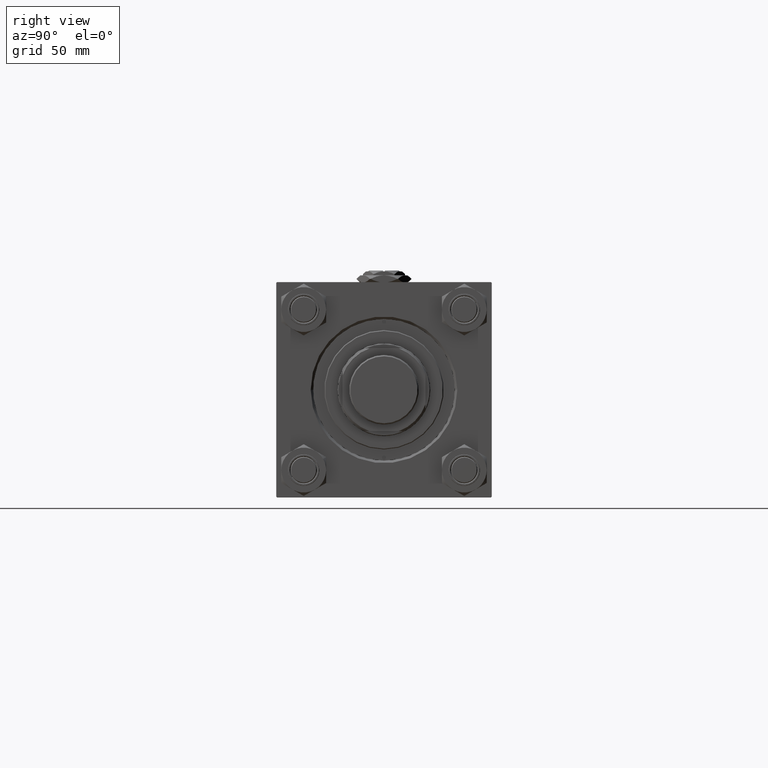
[diagram: clean part render]
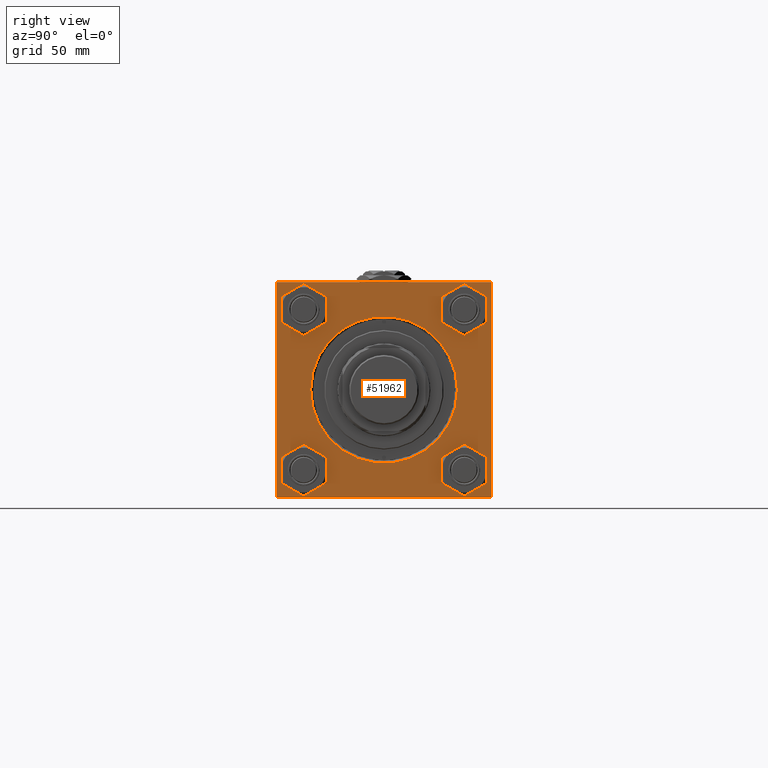
[diagram: same view with one face highlighted and labeled with its STEP entity id]
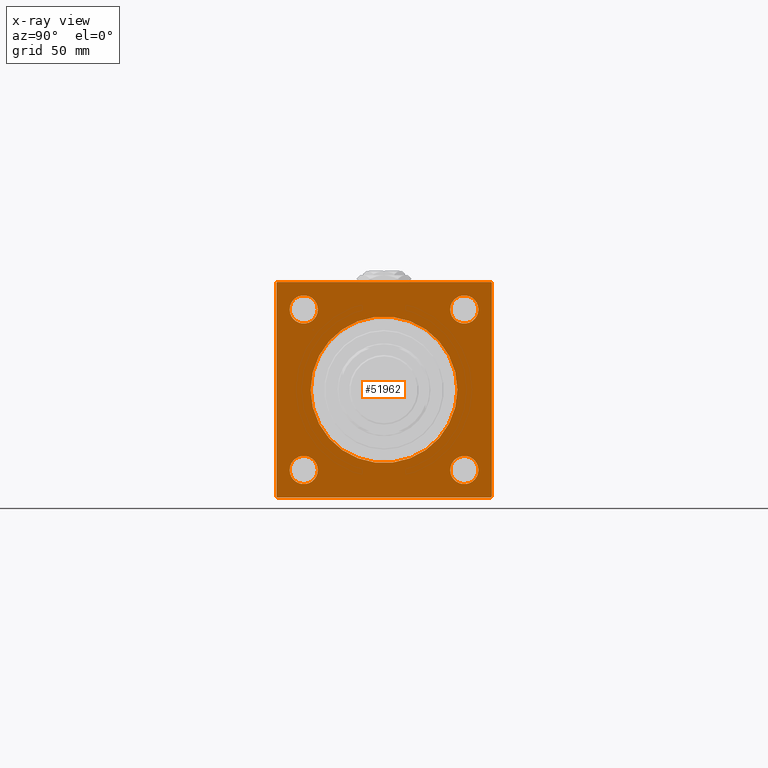
[diagram: x-ray of the same camera — body ghosted, the highlighted face saturated]
A machine part, right view. The second image highlights one B-rep face of the part: STEP entity #51962.
The next image is the same camera in x-ray: the body ghosted, the highlighted face saturated — about 0% of this face is hidden behind the body in this view.
In plain terms, the highlighted planar face has unit normal (-1, 0, 0).
Its self-contained STEP definition (entity closure, byte-faithful):
#309 = DIRECTION ( 'NONE',  ( -1.000000000000000000, 0.000000000000000000, -0.000000000000000000 ) ) ;
#379 = EDGE_CURVE ( 'NONE', #17662, #34992, #8714, .T. ) ;
#559 = EDGE_CURVE ( 'NONE', #38603, #26663, #19885, .T. ) ;
#896 = FACE_BOUND ( 'NONE', #31892, .T. ) ;
#1279 = LINE ( 'NONE', #51554, #18300 ) ;
#1307 = ORIENTED_EDGE ( 'NONE', *, *, #51897, .T. ) ;
#1412 = PLANE ( 'NONE',  #10336 ) ;
#1419 = ORIENTED_EDGE ( 'NONE', *, *, #20208, .T. ) ;
#1432 = CARTESIAN_POINT ( 'NONE',  ( 195.0000000000000000, 65.00000000000002842, -64.49999999999992895 ) ) ;
#1691 = DIRECTION ( 'NONE',  ( 0.000000000000000000, 0.000000000000000000, -1.000000000000000000 ) ) ;
#2149 = DIRECTION ( 'NONE',  ( -1.000000000000000000, 0.000000000000000000, -0.000000000000000000 ) ) ;
#3077 = AXIS2_PLACEMENT_3D ( 'NONE', #16983, #309, #17244 ) ;
#3339 = LINE ( 'NONE', #24053, #52387 ) ;
#3703 = CARTESIAN_POINT ( 'NONE',  ( 195.0000000000000000, -48.45000000000001705, -56.94999999999999574 ) ) ;
#3943 = DIRECTION ( 'NONE',  ( 0.000000000000000000, 0.000000000000000000, -1.000000000000000000 ) ) ;
#4226 = DIRECTION ( 'NONE',  ( 0.000000000000000000, 0.000000000000000000, 1.000000000000000000 ) ) ;
#4238 = CARTESIAN_POINT ( 'NONE',  ( 195.0000000000000000, 65.00000000000002842, 64.50000000000001421 ) ) ;
#4249 = DIRECTION ( 'NONE',  ( -1.000000000000000000, 0.000000000000000000, -0.000000000000000000 ) ) ;
#4678 = EDGE_CURVE ( 'NONE', #41528, #35724, #1279, .T. ) ;
#4688 = DIRECTION ( 'NONE',  ( -1.000000000000000000, 0.000000000000000000, -0.000000000000000000 ) ) ;
#5101 = EDGE_LOOP ( 'NONE', ( #32070, #22636, #49655, #14072, #5290, #1307, #49956, #1419 ) ) ;
#5128 = VECTOR ( 'NONE', #1691, 1000.000000000000000 ) ;
#5138 = VERTEX_POINT ( 'NONE', #21361 ) ;
#5290 = ORIENTED_EDGE ( 'NONE', *, *, #49861, .F. ) ;
#5997 = AXIS2_PLACEMENT_3D ( 'NONE', #8294, #4249, #20679 ) ;
#6457 = DIRECTION ( 'NONE',  ( -1.000000000000000000, 0.000000000000000000, -0.000000000000000000 ) ) ;
#6530 = VERTEX_POINT ( 'NONE', #9227 ) ;
#6898 = CARTESIAN_POINT ( 'NONE',  ( 195.0000000000000000, -64.49999999999991473, -65.00000000000001421 ) ) ;
#6950 = ORIENTED_EDGE ( 'NONE', *, *, #13087, .T. ) ;
#7025 = CARTESIAN_POINT ( 'NONE',  ( 195.0000000000000000, 48.45000000000000995, 39.95000000000003126 ) ) ;
#7468 = VERTEX_POINT ( 'NONE', #13527 ) ;
#7601 = CARTESIAN_POINT ( 'NONE',  ( 195.0000000000000000, 48.45000000000000995, -48.45000000000001705 ) ) ;
#8294 = CARTESIAN_POINT ( 'NONE',  ( 195.0000000000000000, 0.000000000000000000, 0.000000000000000000 ) ) ;
#8465 = CARTESIAN_POINT ( 'NONE',  ( 195.0000000000000000, 48.45000000000000995, -48.45000000000001705 ) ) ;
#8714 = CIRCLE ( 'NONE', #38761, 8.499999999999980460 ) ;
#8715 = CARTESIAN_POINT ( 'NONE',  ( 195.0000000000000000, 0.000000000000000000, 0.000000000000000000 ) ) ;
#8977 = FACE_BOUND ( 'NONE', #31339, .T. ) ;
#9123 = DIRECTION ( 'NONE',  ( 0.000000000000000000, 0.7071067811865672237, -0.7071067811865279218 ) ) ;
#9227 = CARTESIAN_POINT ( 'NONE',  ( 195.0000000000000000, 5.419062086227039772E-15, 44.25000000000001421 ) ) ;
#9237 = FACE_BOUND ( 'NONE', #27995, .T. ) ;
#9396 = ORIENTED_EDGE ( 'NONE', *, *, #50444, .T. ) ;
#9411 = AXIS2_PLACEMENT_3D ( 'NONE', #11056, #6457, #52440 ) ;
#9769 = VERTEX_POINT ( 'NONE', #28482 ) ;
#9774 = CARTESIAN_POINT ( 'NONE',  ( 195.0000000000000000, -64.99999999999998579, 65.00000000000000000 ) ) ;
#9831 = ORIENTED_EDGE ( 'NONE', *, *, #31762, .T. ) ;
#10323 = CIRCLE ( 'NONE', #31795, 8.499999999999980460 ) ;
#10336 = AXIS2_PLACEMENT_3D ( 'NONE', #8715, #37475, #25112 ) ;
#10500 = CARTESIAN_POINT ( 'NONE',  ( 195.0000000000000000, -48.45000000000001705, -48.45000000000001705 ) ) ;
#11015 = ORIENTED_EDGE ( 'NONE', *, *, #379, .T. ) ;
#11056 = CARTESIAN_POINT ( 'NONE',  ( 195.0000000000000000, 0.000000000000000000, 0.000000000000000000 ) ) ;
#11421 = VERTEX_POINT ( 'NONE', #18168 ) ;
#11461 = CIRCLE ( 'NONE', #52656, 8.499999999999980460 ) ;
#12739 = FACE_BOUND ( 'NONE', #31010, .T. ) ;
#12837 = CARTESIAN_POINT ( 'NONE',  ( 195.0000000000000000, 48.45000000000000995, 48.45000000000001705 ) ) ;
#12865 = CIRCLE ( 'NONE', #9411, 44.25000000000001421 ) ;
#13082 = EDGE_CURVE ( 'NONE', #7468, #43089, #11461, .T. ) ;
#13087 = EDGE_CURVE ( 'NONE', #38108, #49060, #14907, .T. ) ;
#13527 = CARTESIAN_POINT ( 'NONE',  ( 195.0000000000000000, -48.44999999999998153, 56.94999999999996732 ) ) ;
#13810 = DIRECTION ( 'NONE',  ( 0.000000000000000000, -1.000000000000000000, -1.067522139062650425E-16 ) ) ;
#13970 = CARTESIAN_POINT ( 'NONE',  ( 195.0000000000000000, -64.99999999999998579, 64.50000000000002842 ) ) ;
#14072 = ORIENTED_EDGE ( 'NONE', *, *, #49231, .T. ) ;
#14907 = CIRCLE ( 'NONE', #22627, 8.499999999999980460 ) ;
#15195 = ORIENTED_EDGE ( 'NONE', *, *, #50283, .T. ) ;
#15939 = DIRECTION ( 'NONE',  ( -1.000000000000000000, 0.000000000000000000, -0.000000000000000000 ) ) ;
#16604 = DIRECTION ( 'NONE',  ( -1.000000000000000000, 0.000000000000000000, -0.000000000000000000 ) ) ;
#16618 = EDGE_CURVE ( 'NONE', #26663, #38603, #31342, .T. ) ;
#16983 = CARTESIAN_POINT ( 'NONE',  ( 195.0000000000000000, -48.44999999999998153, 48.44999999999998863 ) ) ;
#17244 = DIRECTION ( 'NONE',  ( 0.000000000000000000, 0.000000000000000000, 1.000000000000000000 ) ) ;
#17662 = VERTEX_POINT ( 'NONE', #48307 ) ;
#18168 = CARTESIAN_POINT ( 'NONE',  ( 195.0000000000000000, 65.00000000000002842, -64.49999999999992895 ) ) ;
#18300 = VECTOR ( 'NONE', #31141, 1000.000000000000000 ) ;
#19885 = CIRCLE ( 'NONE', #26732, 8.499999999999980460 ) ;
#20019 = CARTESIAN_POINT ( 'NONE',  ( 195.0000000000000000, -48.44999999999998153, 39.95000000000000284 ) ) ;
#20208 = EDGE_CURVE ( 'NONE', #9769, #29849, #21263, .T. ) ;
#20594 = AXIS2_PLACEMENT_3D ( 'NONE', #8465, #4688, #41274 ) ;
#20679 = DIRECTION ( 'NONE',  ( 0.000000000000000000, 0.000000000000000000, 1.000000000000000000 ) ) ;
#21263 = LINE ( 'NONE', #13970, #51233 ) ;
#21361 = CARTESIAN_POINT ( 'NONE',  ( 195.0000000000000000, 64.50000000000000000, 65.00000000000001421 ) ) ;
#21867 = FACE_OUTER_BOUND ( 'NONE', #5101, .T. ) ;
#21918 = CARTESIAN_POINT ( 'NONE',  ( 195.0000000000000000, 48.45000000000000995, -56.94999999999999574 ) ) ;
#22627 = AXIS2_PLACEMENT_3D ( 'NONE', #10500, #38743, #47338 ) ;
#22636 = ORIENTED_EDGE ( 'NONE', *, *, #23693, .T. ) ;
#22835 = CARTESIAN_POINT ( 'NONE',  ( 195.0000000000000000, -64.99999999999998579, 64.50000000000002842 ) ) ;
#23569 = EDGE_CURVE ( 'NONE', #5138, #9769, #42849, .T. ) ;
#23693 = EDGE_CURVE ( 'NONE', #45869, #35724, #25535, .T. ) ;
#23707 = CIRCLE ( 'NONE', #3077, 8.499999999999980460 ) ;
#23795 = DIRECTION ( 'NONE',  ( 0.000000000000000000, -0.7071067811865672237, 0.7071067811865279218 ) ) ;
#24020 = DIRECTION ( 'NONE',  ( 0.000000000000000000, 0.000000000000000000, 1.000000000000000000 ) ) ;
#24053 = CARTESIAN_POINT ( 'NONE',  ( 195.0000000000000000, 64.50000000000000000, 65.00000000000001421 ) ) ;
#25112 = DIRECTION ( 'NONE',  ( -0.000000000000000000, 0.000000000000000000, 1.000000000000000000 ) ) ;
#25535 = LINE ( 'NONE', #29823, #44332 ) ;
#26463 = LINE ( 'NONE', #1432, #26580 ) ;
#26580 = VECTOR ( 'NONE', #30218, 1000.000000000000114 ) ;
#26663 = VERTEX_POINT ( 'NONE', #28341 ) ;
#26729 = LINE ( 'NONE', #9774, #5128 ) ;
#26732 = AXIS2_PLACEMENT_3D ( 'NONE', #12837, #41612, #4226 ) ;
#27226 = CARTESIAN_POINT ( 'NONE',  ( 195.0000000000000000, 0.000000000000000000, -44.25000000000001421 ) ) ;
#27683 = ORIENTED_EDGE ( 'NONE', *, *, #16618, .T. ) ;
#27995 = EDGE_LOOP ( 'NONE', ( #44402, #48363 ) ) ;
#28341 = CARTESIAN_POINT ( 'NONE',  ( 195.0000000000000000, 48.45000000000000995, 56.94999999999999574 ) ) ;
#28482 = CARTESIAN_POINT ( 'NONE',  ( 195.0000000000000000, -64.50000000000002842, 65.00000000000000000 ) ) ;
#28706 = LINE ( 'NONE', #40793, #32596 ) ;
#28805 = DIRECTION ( 'NONE',  ( -1.000000000000000000, 0.000000000000000000, -0.000000000000000000 ) ) ;
#29823 = CARTESIAN_POINT ( 'NONE',  ( 195.0000000000000000, -64.49999999999991473, -65.00000000000001421 ) ) ;
#29849 = VERTEX_POINT ( 'NONE', #22835 ) ;
#30218 = DIRECTION ( 'NONE',  ( -0.000000000000000000, 0.7071067811865474617, 0.7071067811865474617 ) ) ;
#30375 = CARTESIAN_POINT ( 'NONE',  ( 195.0000000000000000, 64.49999999999997158, -64.99999999999998579 ) ) ;
#30379 = DIRECTION ( 'NONE',  ( -0.000000000000000000, -0.7071067811865376918, -0.7071067811865574537 ) ) ;
#30907 = VERTEX_POINT ( 'NONE', #4238 ) ;
#31010 = EDGE_LOOP ( 'NONE', ( #47144, #27683 ) ) ;
#31141 = DIRECTION ( 'NONE',  ( 0.000000000000000000, -1.000000000000000000, -2.135044278125300850E-16 ) ) ;
#31339 = EDGE_LOOP ( 'NONE', ( #9831, #9396 ) ) ;
#31342 = CIRCLE ( 'NONE', #44188, 8.499999999999980460 ) ;
#31557 = EDGE_CURVE ( 'NONE', #49060, #38108, #10323, .T. ) ;
#31762 = EDGE_CURVE ( 'NONE', #43352, #6530, #53216, .T. ) ;
#31795 = AXIS2_PLACEMENT_3D ( 'NONE', #45988, #28805, #41697 ) ;
#31851 = EDGE_CURVE ( 'NONE', #29849, #45869, #26729, .T. ) ;
#31892 = EDGE_LOOP ( 'NONE', ( #6950, #48178 ) ) ;
#32070 = ORIENTED_EDGE ( 'NONE', *, *, #31851, .T. ) ;
#32255 = EDGE_LOOP ( 'NONE', ( #15195, #11015 ) ) ;
#32596 = VECTOR ( 'NONE', #3943, 1000.000000000000000 ) ;
#32752 = CARTESIAN_POINT ( 'NONE',  ( 195.0000000000000000, 48.45000000000000995, 48.45000000000001705 ) ) ;
#33707 = FACE_BOUND ( 'NONE', #32255, .T. ) ;
#34992 = VERTEX_POINT ( 'NONE', #21918 ) ;
#35724 = VERTEX_POINT ( 'NONE', #6898 ) ;
#37475 = DIRECTION ( 'NONE',  ( -1.000000000000000000, 0.000000000000000000, -0.000000000000000000 ) ) ;
#37622 = EDGE_CURVE ( 'NONE', #43089, #7468, #23707, .T. ) ;
#38108 = VERTEX_POINT ( 'NONE', #3703 ) ;
#38603 = VERTEX_POINT ( 'NONE', #7025 ) ;
#38743 = DIRECTION ( 'NONE',  ( -1.000000000000000000, 0.000000000000000000, -0.000000000000000000 ) ) ;
#38761 = AXIS2_PLACEMENT_3D ( 'NONE', #7601, #15939, #24020 ) ;
#39005 = CARTESIAN_POINT ( 'NONE',  ( 195.0000000000000000, -48.44999999999998153, 48.44999999999998863 ) ) ;
#39186 = VECTOR ( 'NONE', #13810, 1000.000000000000000 ) ;
#40793 = CARTESIAN_POINT ( 'NONE',  ( 195.0000000000000000, 65.00000000000002842, 65.00000000000001421 ) ) ;
#41191 = CIRCLE ( 'NONE', #20594, 8.499999999999980460 ) ;
#41274 = DIRECTION ( 'NONE',  ( 0.000000000000000000, 0.000000000000000000, 1.000000000000000000 ) ) ;
#41391 = CARTESIAN_POINT ( 'NONE',  ( 195.0000000000000000, -48.45000000000001705, -39.95000000000003126 ) ) ;
#41528 = VERTEX_POINT ( 'NONE', #30375 ) ;
#41612 = DIRECTION ( 'NONE',  ( -1.000000000000000000, 0.000000000000000000, -0.000000000000000000 ) ) ;
#41697 = DIRECTION ( 'NONE',  ( 0.000000000000000000, 0.000000000000000000, 1.000000000000000000 ) ) ;
#42687 = CARTESIAN_POINT ( 'NONE',  ( 195.0000000000000000, -64.99999999999998579, -64.49999999999997158 ) ) ;
#42849 = LINE ( 'NONE', #50902, #39186 ) ;
#43089 = VERTEX_POINT ( 'NONE', #20019 ) ;
#43352 = VERTEX_POINT ( 'NONE', #27226 ) ;
#44188 = AXIS2_PLACEMENT_3D ( 'NONE', #32752, #16604, #52893 ) ;
#44332 = VECTOR ( 'NONE', #9123, 1000.000000000000000 ) ;
#44402 = ORIENTED_EDGE ( 'NONE', *, *, #37622, .T. ) ;
#45869 = VERTEX_POINT ( 'NONE', #42687 ) ;
#45988 = CARTESIAN_POINT ( 'NONE',  ( 195.0000000000000000, -48.45000000000001705, -48.45000000000001705 ) ) ;
#46533 = DIRECTION ( 'NONE',  ( 0.000000000000000000, 0.000000000000000000, 1.000000000000000000 ) ) ;
#47144 = ORIENTED_EDGE ( 'NONE', *, *, #559, .T. ) ;
#47338 = DIRECTION ( 'NONE',  ( 0.000000000000000000, 0.000000000000000000, 1.000000000000000000 ) ) ;
#48178 = ORIENTED_EDGE ( 'NONE', *, *, #31557, .T. ) ;
#48307 = CARTESIAN_POINT ( 'NONE',  ( 195.0000000000000000, 48.45000000000000995, -39.95000000000003126 ) ) ;
#48363 = ORIENTED_EDGE ( 'NONE', *, *, #13082, .T. ) ;
#49060 = VERTEX_POINT ( 'NONE', #41391 ) ;
#49231 = EDGE_CURVE ( 'NONE', #41528, #11421, #26463, .T. ) ;
#49655 = ORIENTED_EDGE ( 'NONE', *, *, #4678, .F. ) ;
#49861 = EDGE_CURVE ( 'NONE', #30907, #11421, #28706, .T. ) ;
#49956 = ORIENTED_EDGE ( 'NONE', *, *, #23569, .T. ) ;
#50283 = EDGE_CURVE ( 'NONE', #34992, #17662, #41191, .T. ) ;
#50444 = EDGE_CURVE ( 'NONE', #6530, #43352, #12865, .T. ) ;
#50902 = CARTESIAN_POINT ( 'NONE',  ( 195.0000000000000000, 65.00000000000002842, 65.00000000000001421 ) ) ;
#51233 = VECTOR ( 'NONE', #30379, 999.9999999999998863 ) ;
#51554 = CARTESIAN_POINT ( 'NONE',  ( 195.0000000000000000, 65.00000000000002842, -64.99999999999998579 ) ) ;
#51897 = EDGE_CURVE ( 'NONE', #30907, #5138, #3339, .T. ) ;
#51962 = ADVANCED_FACE ( 'NONE', ( #896, #33707, #12739, #9237, #8977, #21867 ), #1412, .F. ) ;
#52387 = VECTOR ( 'NONE', #23795, 1000.000000000000000 ) ;
#52440 = DIRECTION ( 'NONE',  ( 0.000000000000000000, 0.000000000000000000, 1.000000000000000000 ) ) ;
#52656 = AXIS2_PLACEMENT_3D ( 'NONE', #39005, #2149, #46533 ) ;
#52893 = DIRECTION ( 'NONE',  ( 0.000000000000000000, 0.000000000000000000, 1.000000000000000000 ) ) ;
#53216 = CIRCLE ( 'NONE', #5997, 44.25000000000001421 ) ;